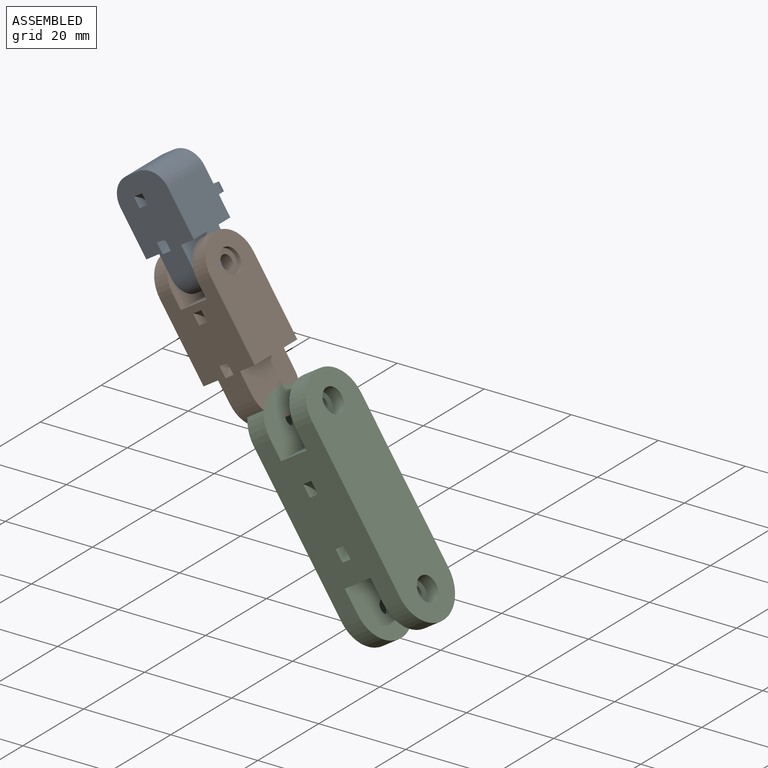
[diagram: assembled view]
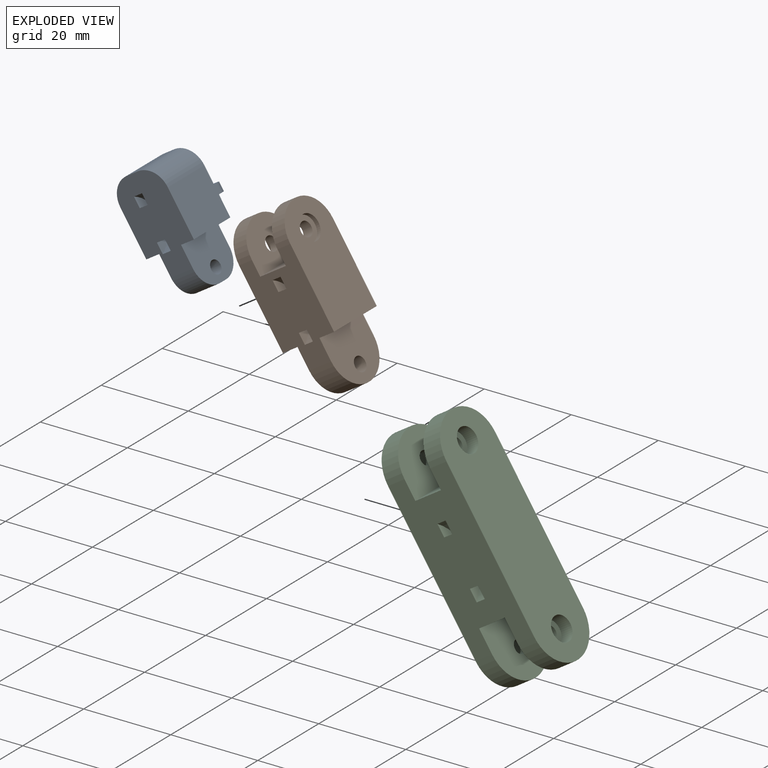
[diagram: exploded view]
GUIDED TOUR — MATED ASSEMBLY (Onshape document bfe211c4af09812b91a9b1d5, AutoMate assembly bfe211c4af09812b91a9b1d5_0d9575d6e291cc281e203cb5_a3294b2bdcdbe564dc2a39f9_default)

This assembly has 3 components, labeled P0..P2 below (a component is one placed occurrence of a part; the same part can appear more than once), held together by 1 mate. A mate is a constraint between two components; its type names the relative motion it leaves free:
  REVOLUTE — leaves rotation about the listed axis free (a hinge).
Axis/direction vectors are unit vectors and 'through' points are millimeter coordinates, both in the assembly's world frame.

MATES
  1. REVOLUTE "Revolute 2": P0 <-> P1, axis (-0.839, 0.000, -0.543) through (-6.65, -7.12, 53.04) mm

ASSEMBLY ORDER
  1. P2 — the base component [order heuristic]
  2. P1 — core [order heuristic]
  3. P0 [order verified]
Order-tag legend:
  [order verified] — this step's position reverses a verified removal order: the component was checked to insert without passing through the ones already placed.
  [order heuristic] — the first 2 components form the assembly's core: parts whose collision-free extraction could not be verified, listed in mate-graph order.

Of the 3 components, 2 carry the full construction recipe — the FeatureScript program that regenerates the part's solid from scratch; the rest are supplied as boundary geometry only.
Each toured component is shown spotlighted twice — in the assembled view, then in the exploded view, where a leader line traces a displaced component back to its assembled socket (saturated green if recipe-attached, orange if geometry-only; every other component desaturated gray) — followed by its recipe or geometry summary and the mates that hold it.
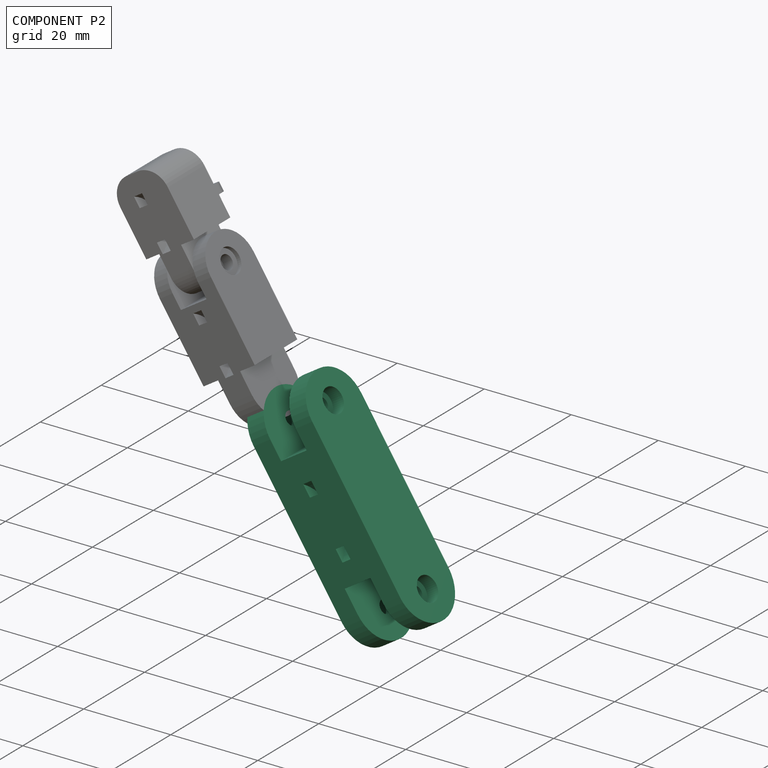
[diagram: component P2 — assembled]
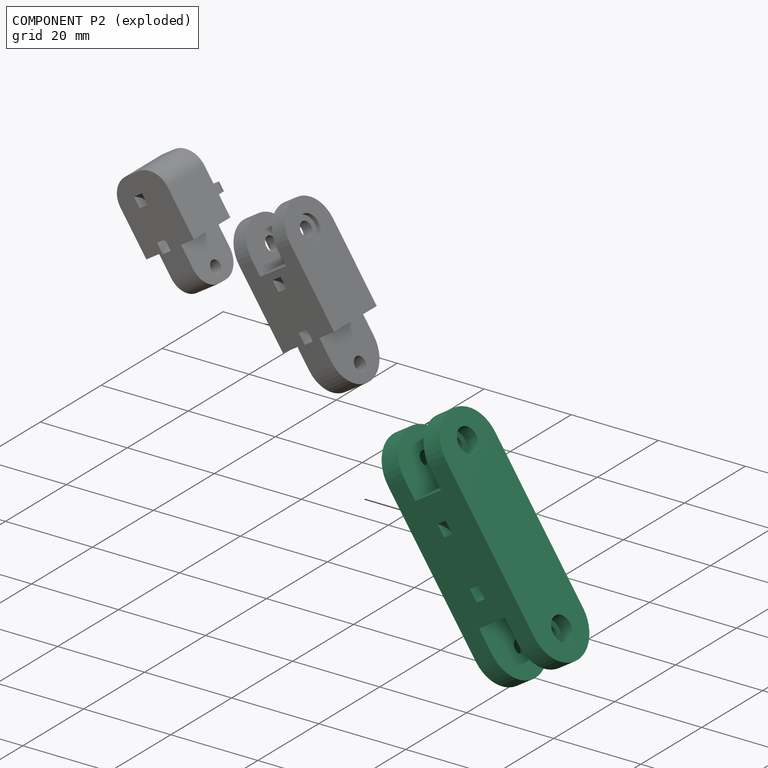
[diagram: component P2 — exploded]
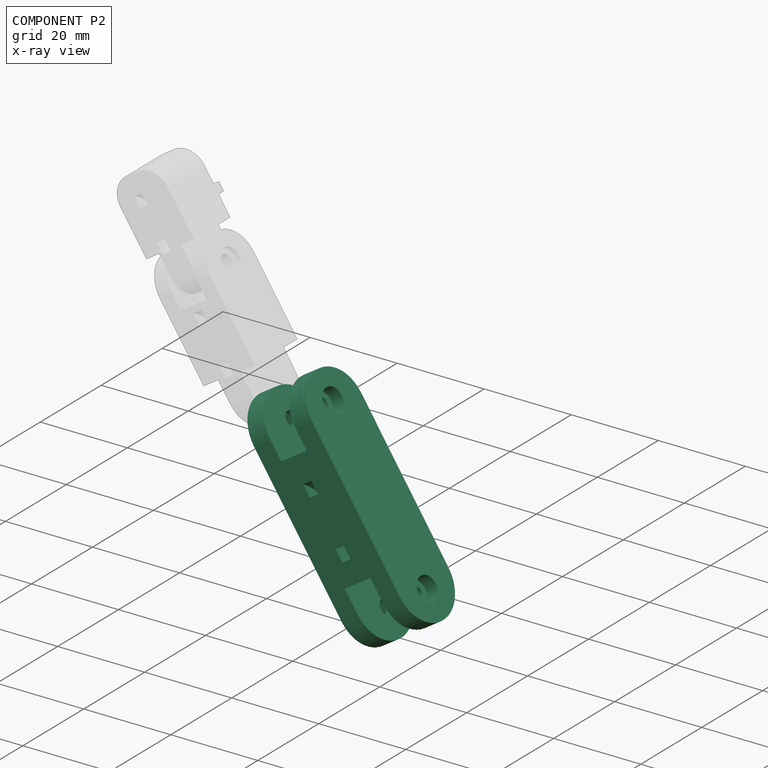
[diagram: component P2 — x-ray view]
COMPONENT P2 — recipe-attached (CADFS 00259517, mesh-verified: the recipe's output STEP matches this component's geometry to below the mesh-comparison resolution (tessellation chordal tolerance ~0.0883 mm)).
Held by: no mates (free).
Construction recipe (FeatureScript — the CAD program that rebuilds this solid; sketch coordinates are in the units given by the * unit suffixes, e.g. mm):

FeatureScript 1511;
import(path : "onshape/std/geometry.fs", version : "1511.0");
import(path : "onshape/std/common.fs", version : "1511.0");
const mm = millimeter;
const VERTEX = EntityType.VERTEX;
const EDGE = EntityType.EDGE;
const FACE = EntityType.FACE;
const BODY = EntityType.BODY;
function v(x, y){return vector(x, y);}
function OD(order){return orderDisambiguation(order);}
function OSD(set){return originalSetDisambiguation(set);}
function TD(topology){return topologyDisambiguation(topology);}
function TDD(query){return trueDependencyDisambiguation(query);}
function sQuery(a, b, c) {return sketchEntityQuery(a, b, c);}

annotation { "Feature Type Name" : "Feature", "Feature Type Description" : "" }
export const myFeature = defineFeature(function(context is Context, id is Id, definition is map)
    precondition{}
    {
        {
            var Q0;
            Q0=qCreatedBy(makeId("Front.planeOp"),FACE);
            var sketch = newSketch(context, id + "F0", { "sketchPlane" : qUnion([Q0])});
            skLineSegment(sketch, "E0", {"start": v(8, 18) * mm, "end": v(8, -18) * mm});
            skLineSegment(sketch, "E1", {"start": v(-8, -18) * mm, "end": v(-8, 18) * mm});
            skLineSegment(sketch, "E2", {"start": v(-8, 18) * mm, "end": v(-8, 26.5) * mm});
            skLineSegment(sketch, "E3", {"start": v(-8, 26.5) * mm, "end": v(-3.5, 26.5) * mm});
            skLineSegment(sketch, "E4.MirrorCS", {"start": v(8, 26.5) * mm, "end": v(3.5, 26.5) * mm});
            skLineSegment(sketch, "E5.MirrorCS", {"start": v(8, 18) * mm, "end": v(8, 26.5) * mm});
            skLineSegment(sketch, "E6.MirrorCS", {"start": v(-3.5, -26.5) * mm, "end": v(-3.5, -18) * mm});
            skLineSegment(sketch, "E7.MirrorCS", {"start": v(8, -18) * mm, "end": v(8, -26.5) * mm});
            skLineSegment(sketch, "E8.MirrorCS", {"start": v(-8, -18) * mm, "end": v(-8, -26.5) * mm});
            skLineSegment(sketch, "E9.MirrorCS", {"start": v(3.5, -26.5) * mm, "end": v(3.5, -18) * mm});
            skLineSegment(sketch, "E10.MirrorCS", {"start": v(-8, -26.5) * mm, "end": v(-3.5, -26.5) * mm});
            skLineSegment(sketch, "E11.MirrorCS", {"start": v(8, -26.5) * mm, "end": v(3.5, -26.5) * mm});
            skLineSegment(sketch, "E12", {"start": v(3.5, 13.9) * mm, "end": v(-3.5, 13.9) * mm});
            skLineSegment(sketch, "E13", {"start": v(3.5, 26.5) * mm, "end": v(3.5, 13.9) * mm});
            skLineSegment(sketch, "E14", {"start": v(-3.5, 26.5) * mm, "end": v(-3.5, 13.9) * mm});
            skLineSegment(sketch, "E15", {"start": v(3.5, -18) * mm, "end": v(3.5, -13) * mm});
            skLineSegment(sketch, "E16", {"start": v(3.5, -13) * mm, "end": v(-3.5, -13) * mm});
            skLineSegment(sketch, "E17", {"start": v(-3.5, -13) * mm, "end": v(-3.5, -18) * mm});
            skSolve(sketch);
        }
        {
            var Q0;
            Q0 = qSketchRegion(id + "F0", true);
            extrude(context, id + "F1", {"entities" : qUnion([Q0]), "depth" : 16 * mm});
        }
        {
            var Q0;
            Q0=makeQuery(id+"F1.opExtrude","CAP_EDGE",EDGE,{"disambiguationData":[OSD([sQuery(id+"F0.wireOp",EDGE,"E4.MirrorCS")])],"isStart":false});
            var Q1;
            Q1=makeQuery(id+"F1.opExtrude","CAP_EDGE",EDGE,{"disambiguationData":[OSD([sQuery(id+"F0.wireOp",EDGE,"E3")])],"isStart":false});
            var Q2;
            Q2=makeQuery(id+"F1.opExtrude","CAP_EDGE",EDGE,{"disambiguationData":[OSD([sQuery(id+"F0.wireOp",EDGE,"E3")])],"isStart":true});
            var Q3;
            Q3=makeQuery(id+"F1.opExtrude","CAP_EDGE",EDGE,{"disambiguationData":[OSD([sQuery(id+"F0.wireOp",EDGE,"E4.MirrorCS")])],"isStart":true});
            var Q4;
            Q4=makeQuery(id+"F1.opExtrude","CAP_EDGE",EDGE,{"disambiguationData":[OSD([sQuery(id+"F0.wireOp",EDGE,"E11.MirrorCS")])],"isStart":false});
            var Q5;
            Q5=makeQuery(id+"F1.opExtrude","CAP_EDGE",EDGE,{"disambiguationData":[OSD([sQuery(id+"F0.wireOp",EDGE,"E10.MirrorCS")])],"isStart":false});
            var Q6;
            Q6=makeQuery(id+"F1.opExtrude","CAP_EDGE",EDGE,{"disambiguationData":[OSD([sQuery(id+"F0.wireOp",EDGE,"E11.MirrorCS")])],"isStart":true});
            var Q7;
            Q7=makeQuery(id+"F1.opExtrude","CAP_EDGE",EDGE,{"disambiguationData":[OSD([sQuery(id+"F0.wireOp",EDGE,"E10.MirrorCS")])],"isStart":true});
            fillet(context, id + "F2", {"entities" : qUnion([Q0, Q1, Q2, Q3, Q4, Q5, Q6, Q7]), "radius" : 8 * mm, "tangentPropagation" : true, "allowEdgeOverflow" : false});
        }
        {
            var Q0;
            Q0=makeQuery(id+"F1.opExtrude","SWEPT_FACE",FACE,{"disambiguationData":[OSD([sQuery(id+"F0.wireOp",EDGE,"E0"),sQuery(id+"F0.wireOp",EDGE,"E5.MirrorCS"),sQuery(id+"F0.wireOp",EDGE,"E7.MirrorCS")])]});
            var sketch = newSketch(context, id + "F3", { "sketchPlane" : qUnion([Q0])});
            skCircle(sketch, "E18", {"center": v(-8, 19.89) * mm, "radius": 1.55 * mm});
            skCircle(sketch, "E19.MirrorC", {"center": v(-8, -19.89) * mm, "radius": 1.55 * mm});
            skSolve(sketch);
        }
        {
            var Q0;
            Q0 = qSketchRegion(id + "F3", true);
            extrude(context, id + "F4", {"entities" : qUnion([Q0]), "operationType" : NewBodyOperationType.REMOVE, "endBound" : BoundingType.SYMMETRIC, "oppositeDirection" : true, "depth" : 25 * mm});
        }
        {
            var Q0;
            Q0 = qSketchRegion(id + "F3", true);
            extrude(context, id + "F5", {"entities" : qUnion([Q0]), "operationType" : NewBodyOperationType.REMOVE, "oppositeDirection" : true, "depth" : 25 * mm});
        }
        {
            var Q0;
            Q0=makeQuery(id+"F1.opExtrude","SWEPT_FACE",FACE,{"disambiguationData":[OSD([sQuery(id+"F0.wireOp",EDGE,"E0"),sQuery(id+"F0.wireOp",EDGE,"E5.MirrorCS"),sQuery(id+"F0.wireOp",EDGE,"E7.MirrorCS")])]});
            var sketch = newSketch(context, id + "F6", { "sketchPlane" : qUnion([Q0])});
            skCircle(sketch, "E20", {"center": v(-8, 19.89) * mm, "radius": 2.8 * mm});
            skCircle(sketch, "E21.MirrorC", {"center": v(-8, -19.89) * mm, "radius": 2.8 * mm});
            skSolve(sketch);
        }
        {
            var Q0;
            Q0 = qSketchRegion(id + "F6", true);
            extrude(context, id + "F7", {"entities" : qUnion([Q0]), "operationType" : NewBodyOperationType.REMOVE, "oppositeDirection" : true, "depth" : 3 * mm});
        }
        {
            var Q0;
            Q0=makeQuery(id+"F1.opExtrude","SWEPT_FACE",FACE,{"disambiguationData":[OSD([sQuery(id+"F0.wireOp",EDGE,"E1"),sQuery(id+"F0.wireOp",EDGE,"E2"),sQuery(id+"F0.wireOp",EDGE,"E8.MirrorCS")])]});
            var sketch = newSketch(context, id + "F8", { "sketchPlane" : qUnion([Q0])});
            skLineSegment(sketch, "E22.0", {"start": v(10.75, 21.48) * mm, "end": v(10.75, 18.3) * mm});
            skLineSegment(sketch, "E22.1", {"start": v(10.75, 18.3) * mm, "end": v(8, 16.71) * mm});
            skLineSegment(sketch, "E22.2", {"start": v(8, 16.71) * mm, "end": v(5.25, 18.3) * mm});
            skLineSegment(sketch, "E22.3", {"start": v(5.25, 18.3) * mm, "end": v(5.25, 21.48) * mm});
            skLineSegment(sketch, "E22.4", {"start": v(5.25, 21.48) * mm, "end": v(8, 23.07) * mm});
            skLineSegment(sketch, "E22.5", {"start": v(8, 23.07) * mm, "end": v(10.75, 21.48) * mm});
            skLineSegment(sketch, "E23.MirrorCS", {"start": v(5.25, -21.48) * mm, "end": v(8, -23.07) * mm});
            skLineSegment(sketch, "E24.MirrorCS", {"start": v(10.75, -18.3) * mm, "end": v(8, -16.71) * mm});
            skLineSegment(sketch, "E25.MirrorCS", {"start": v(8, -16.71) * mm, "end": v(5.25, -18.3) * mm});
            skLineSegment(sketch, "E26.MirrorCS", {"start": v(8, -23.07) * mm, "end": v(10.75, -21.48) * mm});
            skLineSegment(sketch, "E27.MirrorCS", {"start": v(5.25, -18.3) * mm, "end": v(5.25, -21.48) * mm});
            skLineSegment(sketch, "E28.MirrorCS", {"start": v(10.75, -21.48) * mm, "end": v(10.75, -18.3) * mm});
            skSolve(sketch);
        }
        {
            var Q0;
            Q0 = qSketchRegion(id + "F8", true);
            extrude(context, id + "F9", {"entities" : qUnion([Q0]), "operationType" : NewBodyOperationType.REMOVE, "oppositeDirection" : true, "depth" : 3 * mm});
        }
        {
            var Q0;
            Q0=makeQuery(id+"F1.opExtrude","CAP_FACE",FACE,{"disambiguationData":[OSD([sQuery(id+"F0.wireOp",EDGE,"E0"),sQuery(id+"F0.wireOp",EDGE,"E1"),sQuery(id+"F0.wireOp",EDGE,"E2"),sQuery(id+"F0.wireOp",EDGE,"E3"),sQuery(id+"F0.wireOp",EDGE,"E4.MirrorCS"),sQuery(id+"F0.wireOp",EDGE,"E5.MirrorCS"),sQuery(id+"F0.wireOp",EDGE,"E6.MirrorCS"),sQuery(id+"F0.wireOp",EDGE,"E7.MirrorCS"),sQuery(id+"F0.wireOp",EDGE,"E8.MirrorCS"),sQuery(id+"F0.wireOp",EDGE,"E9.MirrorCS"),sQuery(id+"F0.wireOp",EDGE,"E10.MirrorCS"),sQuery(id+"F0.wireOp",EDGE,"E11.MirrorCS"),sQuery(id+"F0.wireOp",EDGE,"E12"),sQuery(id+"F0.wireOp",EDGE,"E13"),sQuery(id+"F0.wireOp",EDGE,"E14"),sQuery(id+"F0.wireOp",EDGE,"E15"),sQuery(id+"F0.wireOp",EDGE,"E16"),sQuery(id+"F0.wireOp",EDGE,"E17")])],"isStart":false});
            var sketch = newSketch(context, id + "F10", { "sketchPlane" : qUnion([Q0])});
            skLineSegment(sketch, "E29", {"start": v(0, 1.86) * mm, "end": v(0, -1.74) * mm});
            skCircle(sketch, "E30", {"center": v(-3, 0) * mm, "radius": 1.13 * mm});
            skSolve(sketch);
        }
        {
            var Q0;
            Q0=makeQuery(id+"F10.imprint","IMPRINT",FACE,{"disambiguationData":[TD([[makeQuery(id+"F10.imprint","IMPRINT",EDGE,{"derivedFrom":sQuery(id+"F10.wireOp",EDGE,"E30")}),1.0]])]});
            var Q1;
            Q1=sQuery(id+"F10.wireOp",EDGE,"E29");
            revolve(context, id + "F11", {"operationType" : NewBodyOperationType.ADD, "entities" : qUnion([Q0]), "axis" : qUnion([Q1]), "revolveType" : RevolveType.FULL});
        }
        {
            var Q0;
            Q0=makeQuery(id+"F1.opExtrude","CAP_FACE",FACE,{"disambiguationData":[OSD([sQuery(id+"F0.wireOp",EDGE,"E0"),sQuery(id+"F0.wireOp",EDGE,"E1"),sQuery(id+"F0.wireOp",EDGE,"E2"),sQuery(id+"F0.wireOp",EDGE,"E3"),sQuery(id+"F0.wireOp",EDGE,"E4.MirrorCS"),sQuery(id+"F0.wireOp",EDGE,"E5.MirrorCS"),sQuery(id+"F0.wireOp",EDGE,"E6.MirrorCS"),sQuery(id+"F0.wireOp",EDGE,"E7.MirrorCS"),sQuery(id+"F0.wireOp",EDGE,"E8.MirrorCS"),sQuery(id+"F0.wireOp",EDGE,"E9.MirrorCS"),sQuery(id+"F0.wireOp",EDGE,"E10.MirrorCS"),sQuery(id+"F0.wireOp",EDGE,"E11.MirrorCS"),sQuery(id+"F0.wireOp",EDGE,"E12"),sQuery(id+"F0.wireOp",EDGE,"E13"),sQuery(id+"F0.wireOp",EDGE,"E14"),sQuery(id+"F0.wireOp",EDGE,"E15"),sQuery(id+"F0.wireOp",EDGE,"E16"),sQuery(id+"F0.wireOp",EDGE,"E17")])],"isStart":true});
            var sketch = newSketch(context, id + "F12", { "sketchPlane" : qUnion([Q0])});
            skCircle(sketch, "E31", {"center": v(3, 0) * mm, "radius": 1.13 * mm});
            skLineSegment(sketch, "E32", {"start": v(0, 5.26) * mm, "end": v(0, -4.23) * mm});
            skSolve(sketch);
        }
        {
            var Q0;
            Q0=makeQuery(id+"F12.imprint","IMPRINT",FACE,{"disambiguationData":[TD([[makeQuery(id+"F12.imprint","IMPRINT",EDGE,{"derivedFrom":sQuery(id+"F12.wireOp",EDGE,"E31")}),1.0]])]});
            var Q1;
            Q1=sQuery(id+"F12.wireOp",EDGE,"E32");
            revolve(context, id + "F13", {"operationType" : NewBodyOperationType.ADD, "entities" : qUnion([Q0]), "axis" : qUnion([Q1]), "revolveType" : RevolveType.FULL});
        }
        {
            var Q0;
            Q0=qCreatedBy(makeId("Top.planeOp"),FACE);
            var sketch = newSketch(context, id + "F14", { "sketchPlane" : qUnion([Q0])});
            skLineSegment(sketch, "E33", {"start": v(-1.88, -16) * mm, "end": v(1.88, -16) * mm});
            skLineSegment(sketch, "E34", {"start": v(4.12, -16) * mm, "end": v(8, -16) * mm});
            skLineSegment(sketch, "E35", {"start": v(-8, -16) * mm, "end": v(-4.12, -16) * mm});
            skLineSegment(sketch, "E36.bottom", {"start": v(-8, -16) * mm, "end": v(8, -16) * mm});
            skLineSegment(sketch, "E36.top", {"start": v(-8, -21.55) * mm, "end": v(8, -21.55) * mm});
            skLineSegment(sketch, "E36.left", {"start": v(-8, -16) * mm, "end": v(-8, -21.55) * mm});
            skLineSegment(sketch, "E36.right", {"start": v(8, -16) * mm, "end": v(8, -21.55) * mm});
            skSolve(sketch);
        }
        {
            var Q0;
            Q0=makeQuery(id+"F14.imprint","IMPRINT",FACE,{"disambiguationData":[TD([[makeQuery(id+"F14.imprint","IMPRINT",EDGE,{"derivedFrom":sQuery(id+"F14.wireOp",EDGE,"E36.top")}),1.0]])]});
            extrude(context, id + "F15", {"entities" : qUnion([Q0]), "operationType" : NewBodyOperationType.REMOVE, "endBound" : BoundingType.SYMMETRIC, "oppositeDirection" : true, "depth" : 25 * mm});
        }
        {
            var Q0;
            Q0=qCreatedBy(makeId("Right.planeOp"),FACE);
            var sketch = newSketch(context, id + "F16", { "sketchPlane" : qUnion([Q0])});
            skArc(sketch, "E37", {"start": v(-16, -8.28) * mm, "mid": v(-11.6, 0) * mm, "end": v(-16, 8.28) * mm});
            skArc(sketch, "E38", {"start": v(-16, -5.43) * mm, "mid": v(-13.8, 0) * mm, "end": v(-16, 5.43) * mm});
            skLineSegment(sketch, "E39", {"start": v(-16, 8.28) * mm, "end": v(-16, 5.43) * mm});
            skPoint(sketch, "E40.orphan", {"position": v(-16, 13.9) * mm});
            skLineSegment(sketch, "E41.trimOffspring", {"start": v(-16, -5.43) * mm, "end": v(-16, -8.28) * mm});
            skPoint(sketch, "E42.orphan", {"position": v(-16, -13) * mm});
            skSolve(sketch);
        }
        {
            var Q0;
            Q0 = qSketchRegion(id + "F16", true);
            extrude(context, id + "F17", {"entities" : qUnion([Q0]), "operationType" : NewBodyOperationType.REMOVE, "endBound" : BoundingType.SYMMETRIC, "oppositeDirection" : true, "depth" : 2.2 * mm});
        }
    });
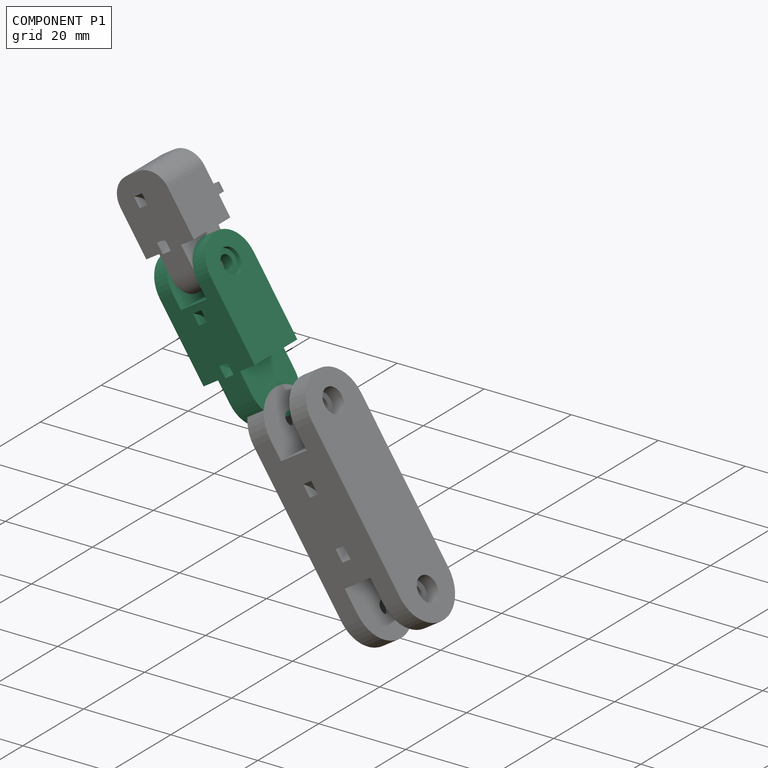
[diagram: component P1 — assembled]
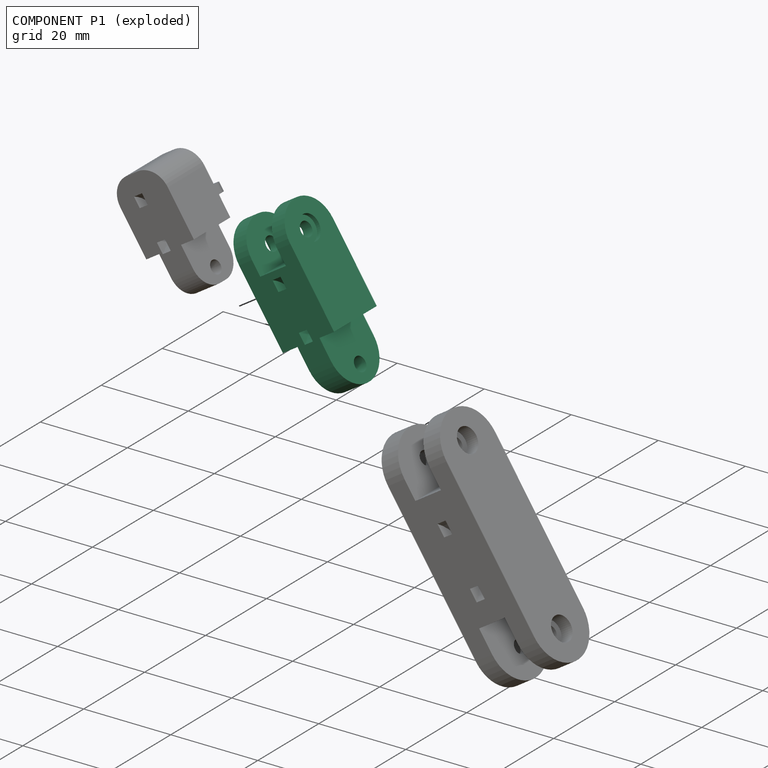
[diagram: component P1 — exploded]
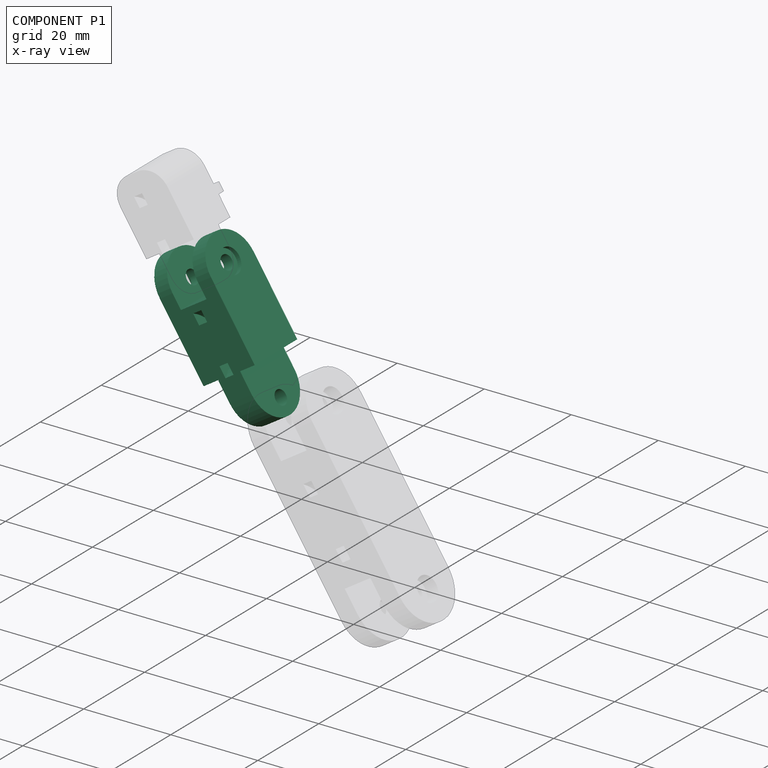
[diagram: component P1 — x-ray view]
COMPONENT P1 — recipe-attached (CADFS 00259518, mesh-verified: the recipe's output STEP matches this component's geometry to below the mesh-comparison resolution (tessellation chordal tolerance ~0.0658 mm)).
Held by: REVOLUTE mate "Revolute 2" to P0.
Construction recipe (FeatureScript — the CAD program that rebuilds this solid; sketch coordinates are in the units given by the * unit suffixes, e.g. mm):

FeatureScript 1511;
import(path : "onshape/std/geometry.fs", version : "1511.0");
import(path : "onshape/std/common.fs", version : "1511.0");
const mm = millimeter;
const VERTEX = EntityType.VERTEX;
const EDGE = EntityType.EDGE;
const FACE = EntityType.FACE;
const BODY = EntityType.BODY;
function v(x, y){return vector(x, y);}
function OD(order){return orderDisambiguation(order);}
function OSD(set){return originalSetDisambiguation(set);}
function TD(topology){return topologyDisambiguation(topology);}
function TDD(query){return trueDependencyDisambiguation(query);}
function sQuery(a, b, c) {return sketchEntityQuery(a, b, c);}

annotation { "Feature Type Name" : "Feature", "Feature Type Description" : "" }
export const myFeature = defineFeature(function(context is Context, id is Id, definition is map)
    precondition{}
    {
        {
            var Q0;
            Q0=qCreatedBy(makeId("Front.planeOp"),FACE);
            var sketch = newSketch(context, id + "F0", { "sketchPlane" : qUnion([Q0])});
            skLineSegment(sketch, "E0.left", {"start": v(-39.5, 21.54) * mm, "end": v(-39.5, -1.95) * mm});
            skLineSegment(sketch, "E0.right", {"start": v(-25.5, 21.54) * mm, "end": v(-25.5, -1.98) * mm});
            skLineSegment(sketch, "E1.left", {"start": v(-39.5, 21.54) * mm, "end": v(-39.5, 21.54) * mm});
            skLineSegment(sketch, "E2", {"start": v(-36, 21.54) * mm, "end": v(-36, 13.03) * mm});
            skLineSegment(sketch, "E3", {"start": v(-36, 13.03) * mm, "end": v(-29, 13.03) * mm});
            skLineSegment(sketch, "E4", {"start": v(-29, 13.03) * mm, "end": v(-29, 21.53) * mm});
            skPoint(sketch, "E5", {"position": v(-29, 17.28) * mm});
            skLineSegment(sketch, "E6", {"start": v(-35.5, -6.45) * mm, "end": v(-35.5, -13.95) * mm});
            skLineSegment(sketch, "E7", {"start": v(-35.5, -13.95) * mm, "end": v(-29.5, -13.95) * mm});
            skLineSegment(sketch, "E8", {"start": v(-29.5, -13.95) * mm, "end": v(-29.5, -6.48) * mm});
            skLineSegment(sketch, "E9", {"start": v(-35.5, -6.45) * mm, "end": v(-29.5, -6.48) * mm});
            skLineSegment(sketch, "E10", {"start": v(-35.5, -3.45) * mm, "end": v(-35.5, -6.45) * mm});
            skLineSegment(sketch, "E11", {"start": v(-29.5, -6.48) * mm, "end": v(-29.5, -3.48) * mm});
            skPoint(sketch, "E12", {"position": v(-29.5, -10.22) * mm});
            skLineSegment(sketch, "E13", {"start": v(-39.5, 21.54) * mm, "end": v(-39.5, 23.54) * mm});
            skLineSegment(sketch, "E14", {"start": v(-36, 21.54) * mm, "end": v(-36, 23.54) * mm});
            skLineSegment(sketch, "E15", {"start": v(-36, 23.54) * mm, "end": v(-39.5, 23.54) * mm});
            skLineSegment(sketch, "E16", {"start": v(-29, 21.53) * mm, "end": v(-29, 23.54) * mm});
            skLineSegment(sketch, "E17", {"start": v(-25.5, 21.54) * mm, "end": v(-25.5, 23.54) * mm});
            skLineSegment(sketch, "E18", {"start": v(-25.5, 23.54) * mm, "end": v(-29, 23.54) * mm});
            skLineSegment(sketch, "E19", {"start": v(-35.5, -3.45) * mm, "end": v(-35.5, -1.95) * mm});
            skLineSegment(sketch, "E20", {"start": v(-35.5, -1.95) * mm, "end": v(-39.5, -1.95) * mm});
            skLineSegment(sketch, "E21", {"start": v(-29.5, -3.48) * mm, "end": v(-29.5, -1.98) * mm});
            skLineSegment(sketch, "E22", {"start": v(-29.5, -1.98) * mm, "end": v(-25.5, -1.98) * mm});
            skSolve(sketch);
        }
        {
            var Q0;
            Q0=makeQuery(id+"F0.imprint","IMPRINT",FACE,{"disambiguationData":[TD([[makeQuery(id+"F0.imprint","IMPRINT",EDGE,{"derivedFrom":sQuery(id+"F0.wireOp",EDGE,"E0.top")}),1.0]])]});
            var Q1;
            Q1=makeQuery(id+"F0.imprint","IMPRINT",FACE,{"disambiguationData":[TD([[makeQuery(id+"F0.imprint","IMPRINT",EDGE,{"derivedFrom":sQuery(id+"F0.wireOp",EDGE,"ADavjHGe-tSKU-QmEj-BJW0-Q7HaZQKlhmP1")}),1.0]])]});
            var Q2;
            Q2=makeQuery(id+"F0.imprint","IMPRINT",FACE,{"disambiguationData":[TD([[makeQuery(id+"F0.imprint","IMPRINT",EDGE,{"derivedFrom":sQuery(id+"F0.wireOp",EDGE,"E0.left")}),1.0]])]});
            var Q3;
            Q3=makeQuery(id+"F0.imprint","IMPRINT",FACE,{"disambiguationData":[TD([[makeQuery(id+"F0.imprint","IMPRINT",EDGE,{"derivedFrom":sQuery(id+"F0.wireOp",EDGE,"E6")}),1.0]])]});
            extrude(context, id + "F1", {"entities" : qUnion([Q0, Q1, Q2, Q3]), "endBound" : BoundingType.SYMMETRIC, "depth" : 14 * mm});
        }
        {
            var Q0;
            Q0=makeQuery(id+"F1.opExtrude","SWEPT_FACE",FACE,{"disambiguationData":[OSD([sQuery(id+"F0.wireOp",EDGE,"E8")])]});
            var sketch = newSketch(context, id + "F2", { "sketchPlane" : qUnion([Q0])});
            skCircle(sketch, "E23", {"center": v(0, -10.2) * mm, "radius": 1.65 * mm});
            skSolve(sketch);
        }
        {
            var Q0;
            Q0 = qSketchRegion(id + "F2", true);
            extrude(context, id + "F3", {"entities" : qUnion([Q0]), "operationType" : NewBodyOperationType.REMOVE, "oppositeDirection" : true, "depth" : 25 * mm});
        }
        {
            var Q0;
            Q0=makeQuery(id+"F1.opExtrude","SWEPT_FACE",FACE,{"disambiguationData":[OSD([sQuery(id+"F0.wireOp",EDGE,"E0.right")])]});
            var sketch = newSketch(context, id + "F4", { "sketchPlane" : qUnion([Q0])});
            skCircle(sketch, "E24", {"center": v(0, 17.3) * mm, "radius": 1.65 * mm});
            skSolve(sketch);
        }
        {
            var Q0;
            Q0 = qSketchRegion(id + "F4", true);
            extrude(context, id + "F5", {"entities" : qUnion([Q0]), "operationType" : NewBodyOperationType.REMOVE, "oppositeDirection" : true, "depth" : 25 * mm});
        }
        {
            var Q0;
            Q0=makeQuery(id+"F1.opExtrude","CAP_EDGE",EDGE,{"disambiguationData":[OSD([sQuery(id+"F0.wireOp",EDGE,"E15")])],"isStart":false});
            var Q1;
            Q1=makeQuery(id+"F1.opExtrude","CAP_EDGE",EDGE,{"disambiguationData":[OSD([sQuery(id+"F0.wireOp",EDGE,"E15")])],"isStart":true});
            var Q2;
            Q2=makeQuery(id+"F1.opExtrude","CAP_EDGE",EDGE,{"disambiguationData":[OSD([sQuery(id+"F0.wireOp",EDGE,"E18")])],"isStart":true});
            var Q3;
            Q3=makeQuery(id+"F1.opExtrude","CAP_EDGE",EDGE,{"disambiguationData":[OSD([sQuery(id+"F0.wireOp",EDGE,"E18")])],"isStart":false});
            var Q4;
            Q4=makeQuery(id+"F1.opExtrude","CAP_EDGE",EDGE,{"disambiguationData":[OSD([sQuery(id+"F0.wireOp",EDGE,"E7")])],"isStart":false});
            var Q5;
            Q5=makeQuery(id+"F1.opExtrude","CAP_EDGE",EDGE,{"disambiguationData":[OSD([sQuery(id+"F0.wireOp",EDGE,"E7")])],"isStart":true});
            fillet(context, id + "F6", {"entities" : qUnion([Q0, Q1, Q2, Q3, Q4, Q5]), "radius" : 7 * mm, "tangentPropagation" : true, "allowEdgeOverflow" : false});
        }
        {
            var Q0;
            Q0=makeQuery(id+"F1.opExtrude","SWEPT_FACE",FACE,{"disambiguationData":[OSD([sQuery(id+"F0.wireOp",EDGE,"E0.right")])]});
            var sketch = newSketch(context, id + "F7", { "sketchPlane" : qUnion([Q0])});
            skCircle(sketch, "E25", {"center": v(0, 17.3) * mm, "radius": 2.85 * mm});
            skSolve(sketch);
        }
        {
            var Q0;
            Q0 = qSketchRegion(id + "F7", true);
            extrude(context, id + "F8", {"entities" : qUnion([Q0]), "operationType" : NewBodyOperationType.REMOVE, "oppositeDirection" : true, "depth" : 1 * mm});
        }
        {
            var Q0;
            Q0=makeQuery(id+"F1.opExtrude","SWEPT_FACE",FACE,{"disambiguationData":[OSD([sQuery(id+"F0.wireOp",EDGE,"E0.left")])]});
            var sketch = newSketch(context, id + "F9", { "sketchPlane" : qUnion([Q0])});
            skCircle(sketch, "E26.cCircle", {"center": v(0, 17.3) * mm, "radius": 2.75 * mm, "construction": true});
            skLineSegment(sketch, "E26.0", {"start": v(2.72, 15.64) * mm, "end": v(-0.07, 14.12) * mm});
            skLineSegment(sketch, "E26.1", {"start": v(-0.07, 14.12) * mm, "end": v(-2.78, 15.76) * mm});
            skLineSegment(sketch, "E26.2", {"start": v(-2.78, 15.76) * mm, "end": v(-2.72, 18.94) * mm});
            skLineSegment(sketch, "E26.3", {"start": v(-2.72, 18.94) * mm, "end": v(0.07, 20.47) * mm});
            skLineSegment(sketch, "E26.4", {"start": v(0.07, 20.47) * mm, "end": v(2.78, 18.82) * mm});
            skLineSegment(sketch, "E26.5", {"start": v(2.78, 18.82) * mm, "end": v(2.72, 15.64) * mm});
            skPoint(sketch, "E26.0.midPoint", {"position": v(1.32, 14.88) * mm});
            skSolve(sketch);
        }
        {
            var Q0;
            Q0 = qSketchRegion(id + "F9", true);
            extrude(context, id + "F10", {"entities" : qUnion([Q0]), "operationType" : NewBodyOperationType.REMOVE, "oppositeDirection" : true, "depth" : 1.5 * mm});
        }
        {
            var Q0;
            Q0=makeQuery(id+"F1.opExtrude","CAP_FACE",FACE,{"disambiguationData":[OSD([sQuery(id+"F0.wireOp",EDGE,"E0.left"),sQuery(id+"F0.wireOp",EDGE,"E0.right"),sQuery(id+"F0.wireOp",EDGE,"E2"),sQuery(id+"F0.wireOp",EDGE,"E3"),sQuery(id+"F0.wireOp",EDGE,"E4"),sQuery(id+"F0.wireOp",EDGE,"E6"),sQuery(id+"F0.wireOp",EDGE,"E7"),sQuery(id+"F0.wireOp",EDGE,"E8"),sQuery(id+"F0.wireOp",EDGE,"E10"),sQuery(id+"F0.wireOp",EDGE,"E11"),sQuery(id+"F0.wireOp",EDGE,"E13"),sQuery(id+"F0.wireOp",EDGE,"E14"),sQuery(id+"F0.wireOp",EDGE,"E15"),sQuery(id+"F0.wireOp",EDGE,"E16"),sQuery(id+"F0.wireOp",EDGE,"E17"),sQuery(id+"F0.wireOp",EDGE,"E18"),sQuery(id+"F0.wireOp",EDGE,"E19"),sQuery(id+"F0.wireOp",EDGE,"E20"),sQuery(id+"F0.wireOp",EDGE,"E21"),sQuery(id+"F0.wireOp",EDGE,"E22")])],"isStart":false});
            var sketch = newSketch(context, id + "F11", { "sketchPlane" : qUnion([Q0])});
            skLineSegment(sketch, "E27", {"start": v(-32.5, 13.03) * mm, "end": v(-32.5, -6.95) * mm});
            skPoint(sketch, "E28.orphan", {"position": v(-39.5, 7.3) * mm});
            skCircle(sketch, "E29", {"center": v(-35.5, 7.3) * mm, "radius": 1.13 * mm});
            skPoint(sketch, "E30.orphan", {"position": v(-25.5, 7.3) * mm});
            skPoint(sketch, "E31.orphan", {"position": v(-32.5, 7.3) * mm});
            skSolve(sketch);
        }
        {
            var Q0;
            Q0=makeQuery(id+"F11.imprint","IMPRINT",FACE,{"disambiguationData":[TD([[makeQuery(id+"F11.imprint","IMPRINT",EDGE,{"derivedFrom":sQuery(id+"F11.wireOp",EDGE,"E29")}),1.0]])]});
            var Q1;
            Q1=sQuery(id+"F11.wireOp",EDGE,"E27");
            revolve(context, id + "F12", {"operationType" : NewBodyOperationType.ADD, "entities" : qUnion([Q0]), "axis" : qUnion([Q1]), "revolveType" : RevolveType.FULL});
        }
        {
            var Q0;
            Q0=makeQuery(id+"F1.opExtrude","CAP_FACE",FACE,{"disambiguationData":[OSD([sQuery(id+"F0.wireOp",EDGE,"E0.left"),sQuery(id+"F0.wireOp",EDGE,"E0.right"),sQuery(id+"F0.wireOp",EDGE,"E2"),sQuery(id+"F0.wireOp",EDGE,"E3"),sQuery(id+"F0.wireOp",EDGE,"E4"),sQuery(id+"F0.wireOp",EDGE,"E6"),sQuery(id+"F0.wireOp",EDGE,"E7"),sQuery(id+"F0.wireOp",EDGE,"E8"),sQuery(id+"F0.wireOp",EDGE,"E10"),sQuery(id+"F0.wireOp",EDGE,"E11"),sQuery(id+"F0.wireOp",EDGE,"E13"),sQuery(id+"F0.wireOp",EDGE,"E14"),sQuery(id+"F0.wireOp",EDGE,"E15"),sQuery(id+"F0.wireOp",EDGE,"E16"),sQuery(id+"F0.wireOp",EDGE,"E17"),sQuery(id+"F0.wireOp",EDGE,"E18"),sQuery(id+"F0.wireOp",EDGE,"E19"),sQuery(id+"F0.wireOp",EDGE,"E20"),sQuery(id+"F0.wireOp",EDGE,"E21"),sQuery(id+"F0.wireOp",EDGE,"E22")])],"isStart":true});
            var sketch = newSketch(context, id + "F13", { "sketchPlane" : qUnion([Q0])});
            skLineSegment(sketch, "E32", {"start": v(32.5, 13.03) * mm, "end": v(32.5, -6.95) * mm});
            skPoint(sketch, "E33.orphan", {"position": v(39.5, 7.28) * mm});
            skPoint(sketch, "E34.orphan", {"position": v(25.5, 7.28) * mm});
            skCircle(sketch, "E35", {"center": v(29.6, 7.28) * mm, "radius": 1.13 * mm});
            skPoint(sketch, "E36.end.orphan", {"position": v(32.5, 7.28) * mm});
            skSolve(sketch);
        }
        {
            var Q0;
            Q0=makeQuery(id+"F13.imprint","IMPRINT",FACE,{"disambiguationData":[TD([[makeQuery(id+"F13.imprint","IMPRINT",EDGE,{"derivedFrom":sQuery(id+"F13.wireOp",EDGE,"E35")}),1.0]])]});
            var Q1;
            Q1=sQuery(id+"F13.wireOp",EDGE,"E32");
            revolve(context, id + "F14", {"operationType" : NewBodyOperationType.ADD, "entities" : qUnion([Q0]), "axis" : qUnion([Q1]), "revolveType" : RevolveType.FULL});
        }
        {
            var Q0;
            Q0=makeQuery(id+"F1.opExtrude","SWEPT_FACE",FACE,{"disambiguationData":[OSD([sQuery(id+"F0.wireOp",EDGE,"E3")])]});
            var sketch = newSketch(context, id + "F15", { "sketchPlane" : qUnion([Q0])});
            skLineSegment(sketch, "E37", {"start": v(-29, -7) * mm, "end": v(-25.5, -7) * mm});
            skLineSegment(sketch, "E38", {"start": v(-36, -7) * mm, "end": v(-29, -7) * mm});
            skLineSegment(sketch, "E39", {"start": v(-39.5, -7) * mm, "end": v(-36, -7) * mm});
            skLineSegment(sketch, "E40.bottom", {"start": v(-39.5, -7) * mm, "end": v(-25.5, -7) * mm});
            skLineSegment(sketch, "E40.top", {"start": v(-39.5, -13.43) * mm, "end": v(-25.5, -13.43) * mm});
            skLineSegment(sketch, "E40.left", {"start": v(-39.5, -7) * mm, "end": v(-39.5, -13.43) * mm});
            skLineSegment(sketch, "E40.right", {"start": v(-25.5, -7) * mm, "end": v(-25.5, -13.43) * mm});
            skSolve(sketch);
        }
        {
            var Q0;
            Q0=makeQuery(id+"F15.imprint","IMPRINT",FACE,{"disambiguationData":[TD([[makeQuery(id+"F15.imprint","IMPRINT",EDGE,{"derivedFrom":sQuery(id+"F15.wireOp",EDGE,"E40.top")}),1.0]])]});
            extrude(context, id + "F16", {"entities" : qUnion([Q0]), "operationType" : NewBodyOperationType.REMOVE, "oppositeDirection" : true, "depth" : 25 * mm});
        }
        {
            var Q0;
            Q0=qCreatedBy(makeId("Right.planeOp"),FACE);
            cPlane(context, id + "F17", {"entities" : qUnion([Q0]), "cplaneType" : CPlaneType.OFFSET, "offset" : 32.5 * mm, "oppositeDirection" : true, "width" : 150 * mm, "height" : 150 * mm});
        }
        {
            var Q0;
            Q0=qCreatedBy(id+"F17.planeOp",FACE);
            var sketch = newSketch(context, id + "F18", { "sketchPlane" : qUnion([Q0])});
            skArc(sketch, "E41", {"start": v(-7, 0.4) * mm, "mid": v(-4.8, 4.7) * mm, "end": v(-7, 9) * mm});
            skArc(sketch, "E42", {"start": v(-7, -2.13) * mm, "mid": v(-2.6, 4.7) * mm, "end": v(-7, 11.53) * mm});
            skLineSegment(sketch, "E43", {"start": v(-7, 13.03) * mm, "end": v(-7, 9) * mm});
            skLineSegment(sketch, "E44.trimOffspring", {"start": v(-7, 0.4) * mm, "end": v(-7, -2.13) * mm});
            skPoint(sketch, "E45.orphan", {"position": v(-7, -6.95) * mm});
            skSolve(sketch);
        }
        {
            var Q0;
            Q0 = qSketchRegion(id + "F18", true);
            extrude(context, id + "F19", {"entities" : qUnion([Q0]), "operationType" : NewBodyOperationType.REMOVE, "endBound" : BoundingType.SYMMETRIC, "oppositeDirection" : true, "depth" : 2.2 * mm});
        }
    });
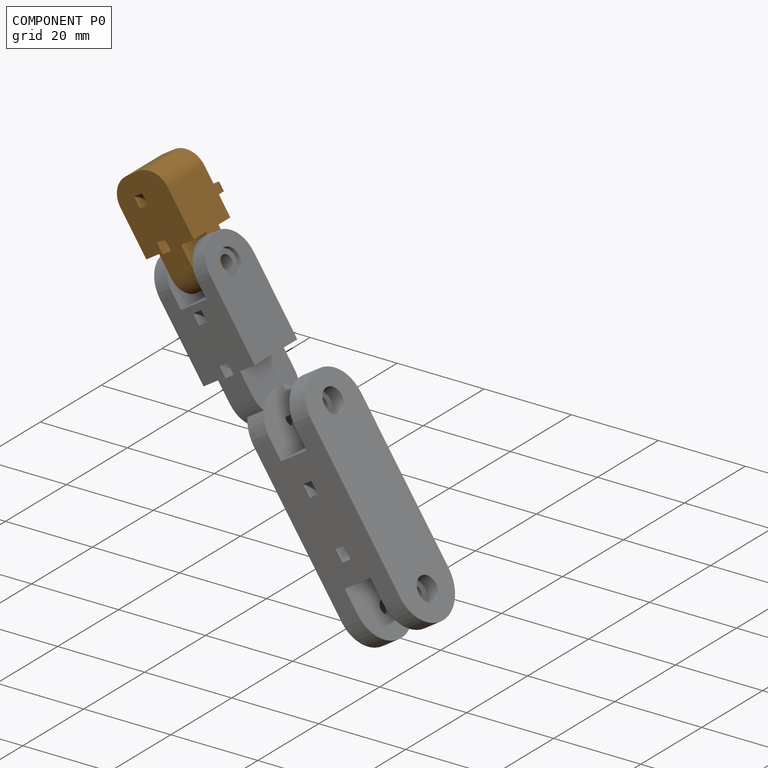
[diagram: component P0 — assembled]
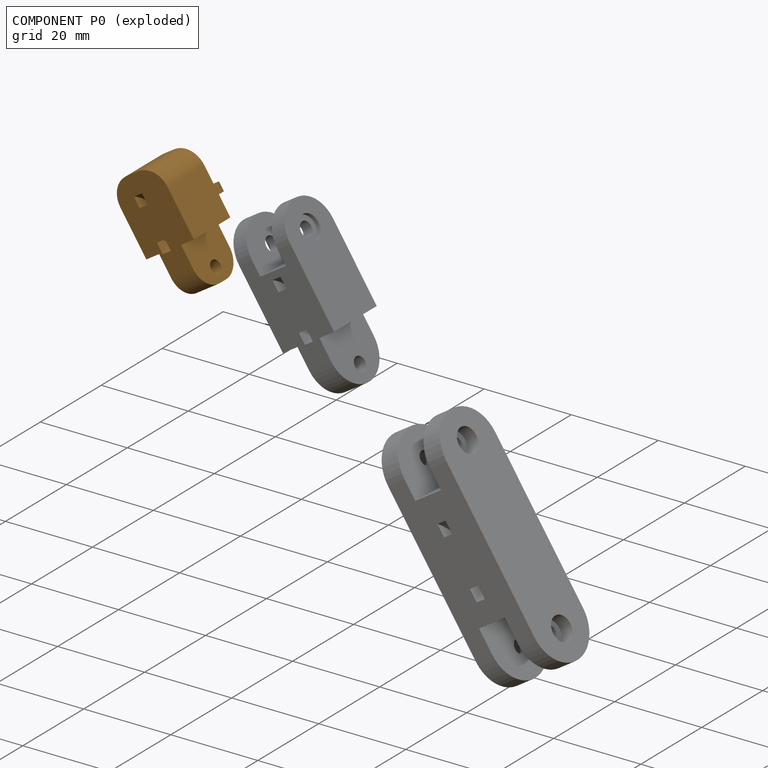
[diagram: component P0 — exploded]
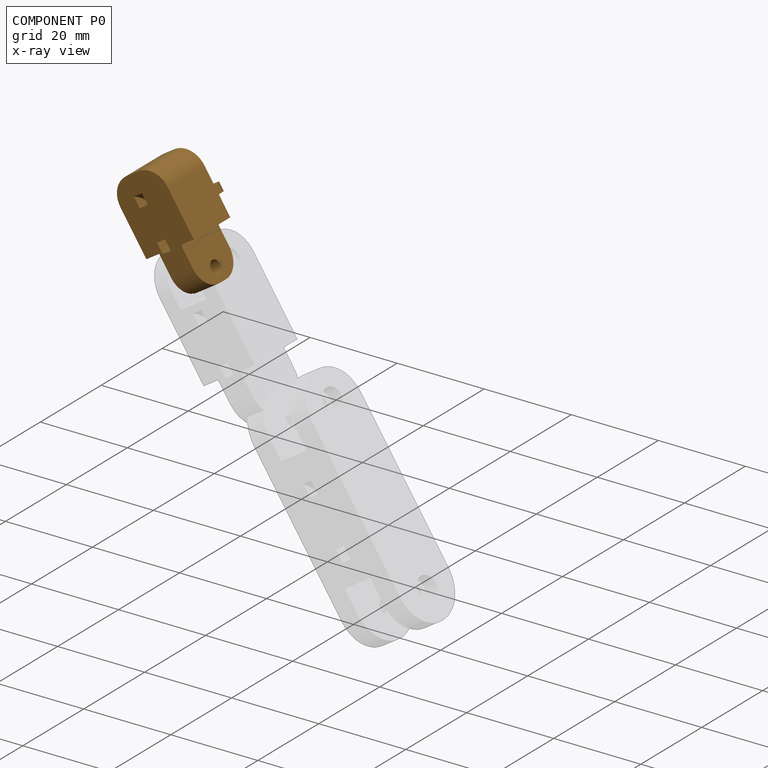
[diagram: component P0 — x-ray view]
COMPONENT P0 — geometry summary (no construction recipe available for this part):
  bounding box: 26.0 x 18.5 x 13.0 mm
  B-rep topology: 1 solid, 27 faces, 146 edges
  volume: 2993 mm^3 (48% of its bounding box)
Held by: REVOLUTE mate "Revolute 2" to P1.
PROVENANCE & LICENSES
Assembly (occurrences, transforms, mates, per-part STEP geometry): AutoMate dataset, Zenodo record 7776208, CC0.
Construction recipes: CADFS (HuggingFace VladPyatov/CADFS, CC-BY-4.0, layered over the ABC dataset), FeatureScript reconstruction programs keyed by ABC model id.
Join: ABC meta listings map ABC model id -> Onshape documentId; within a shared document, parts are matched by geometric signature (bounding-box dims + volume at 0.1% relative tolerance, exact B-rep face/solid counts).
Verification: 2 of this assembly's 3 components carry a recipe attachment, and every attachment is mesh-verified: the CADFS STEP and the AutoMate member STEP were compared as meshes in their shared local frame (symmetric sampled-point-to-mesh distance); worst across the 2 attachments: below the mesh-comparison resolution (tessellation chordal tolerance ~0.0883 mm) on a 59 mm part.
Renders: orthographic iso camera (az 35 / el 25); the floor grid conveys scale (grid pitch printed in each image; no ruler). In the exploded view each component is displaced by its stored offset vector: the offsets alone carry the explosion direction (mate normal/axis signs are not orientation cues and do not encode it), and separation distances are assigned per mate-chain, not proportionally to assembly-order depth.
